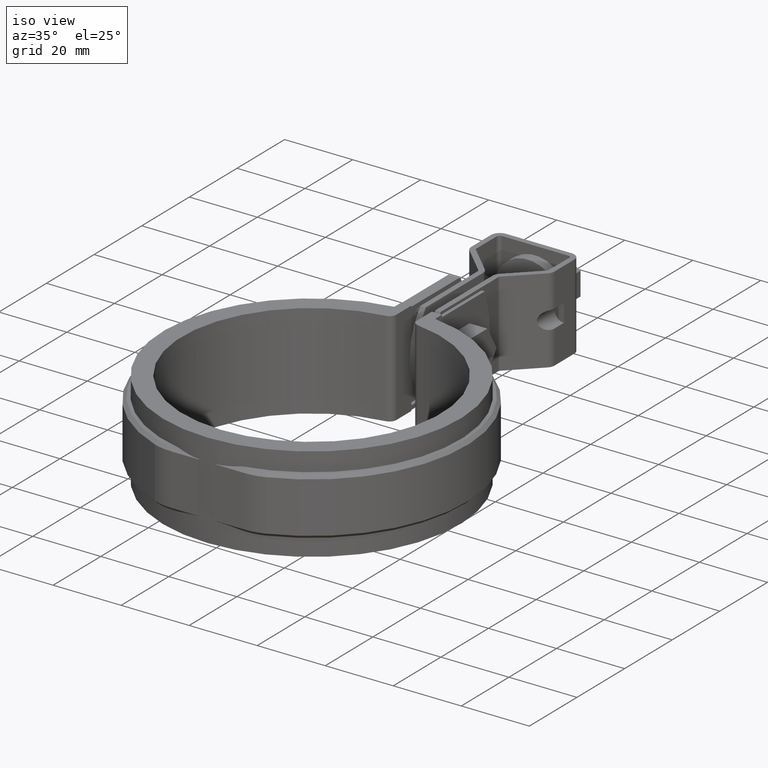
[diagram: clean part render]
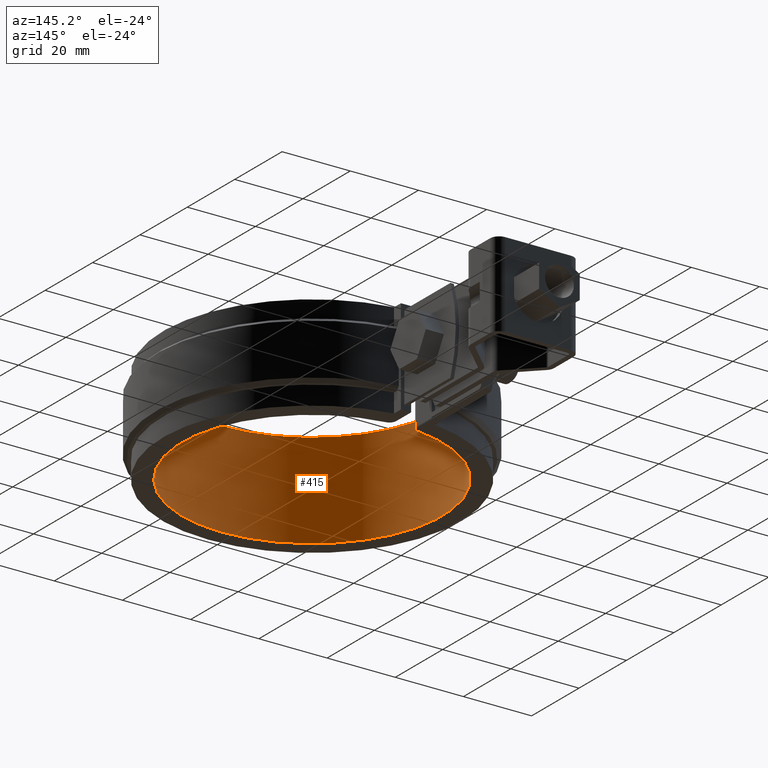
[diagram: tour spotlight — one face highlighted and labeled with its STEP entity id]
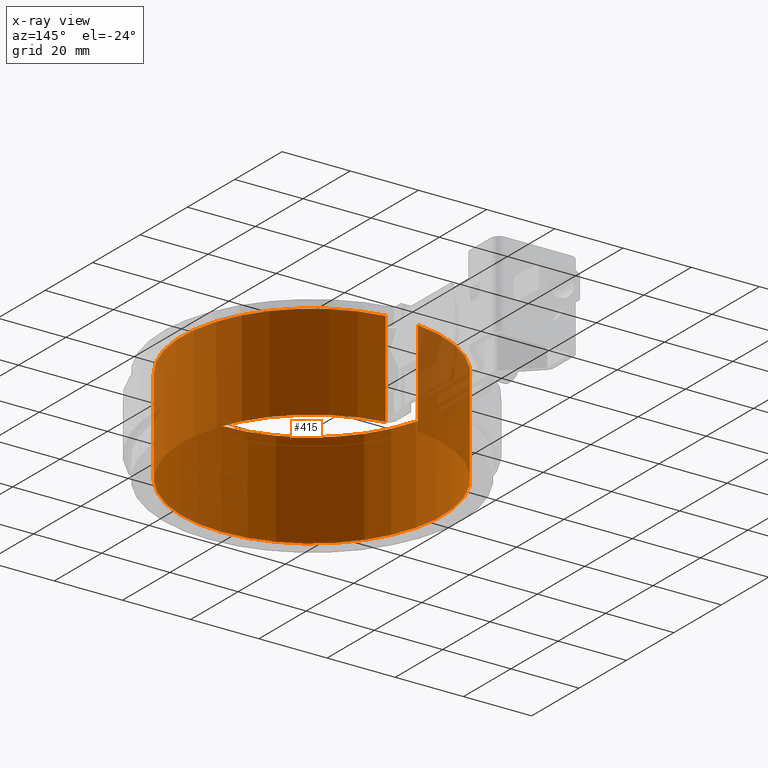
[diagram: x-ray of the same camera — body ghosted, this tour face saturated]
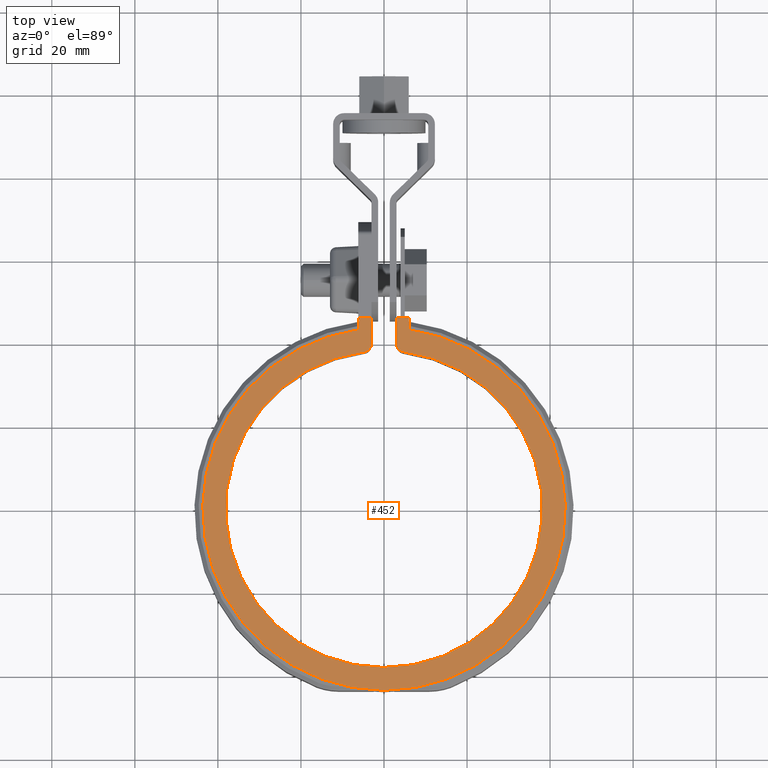
[diagram: tour spotlight — one face highlighted and labeled with its STEP entity id]
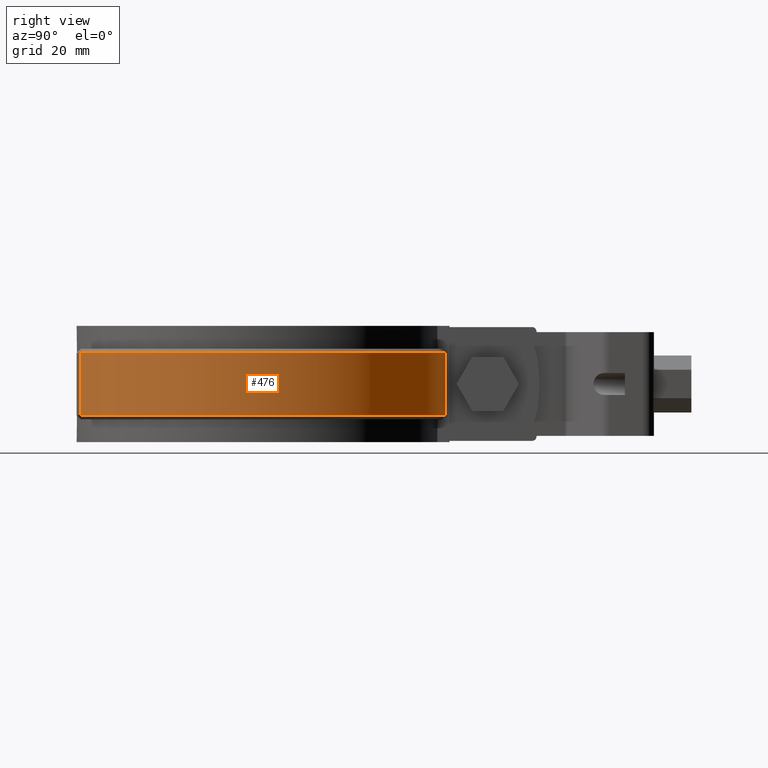
[diagram: tour spotlight — one face highlighted and labeled with its STEP entity id]
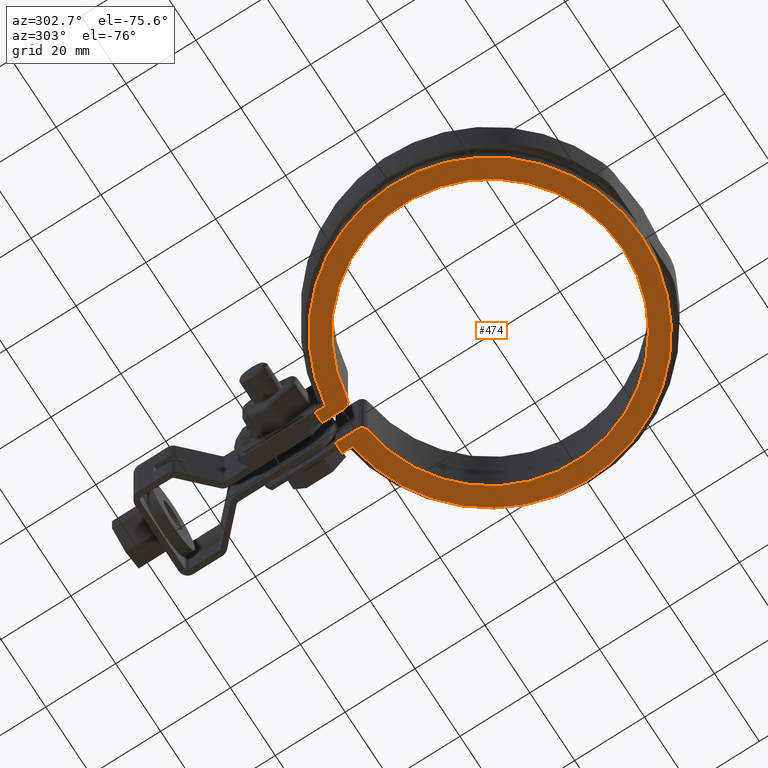
[diagram: tour spotlight — one face highlighted and labeled with its STEP entity id]
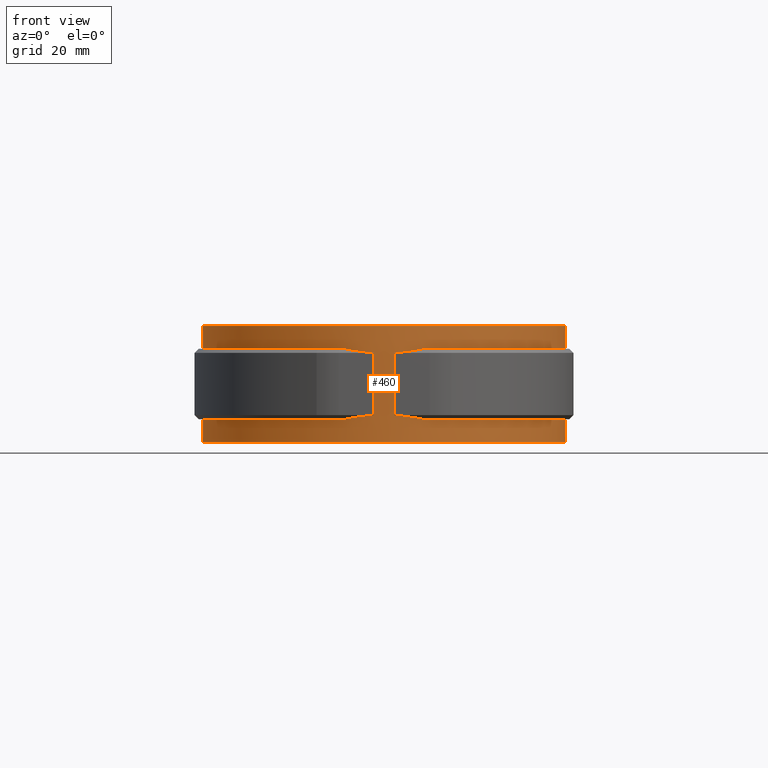
[diagram: tour spotlight — one face highlighted and labeled with its STEP entity id]
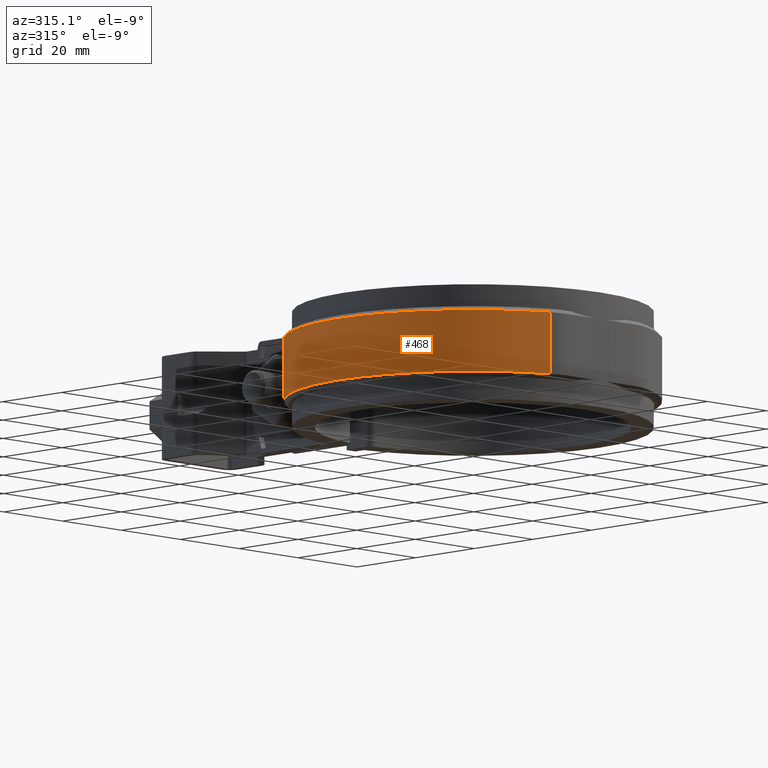
[diagram: tour spotlight — one face highlighted and labeled with its STEP entity id]
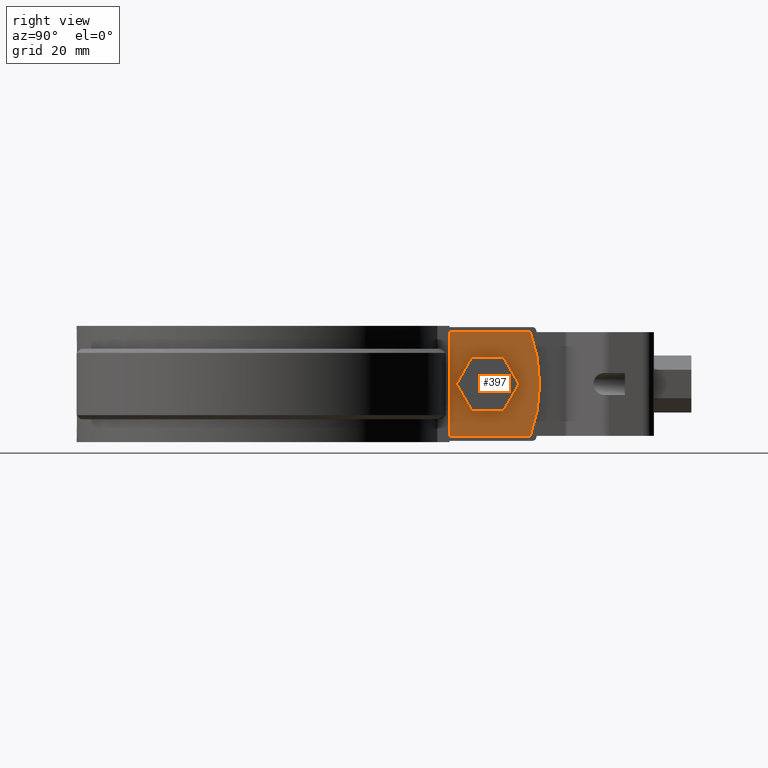
[diagram: tour spotlight — one face highlighted and labeled with its STEP entity id]
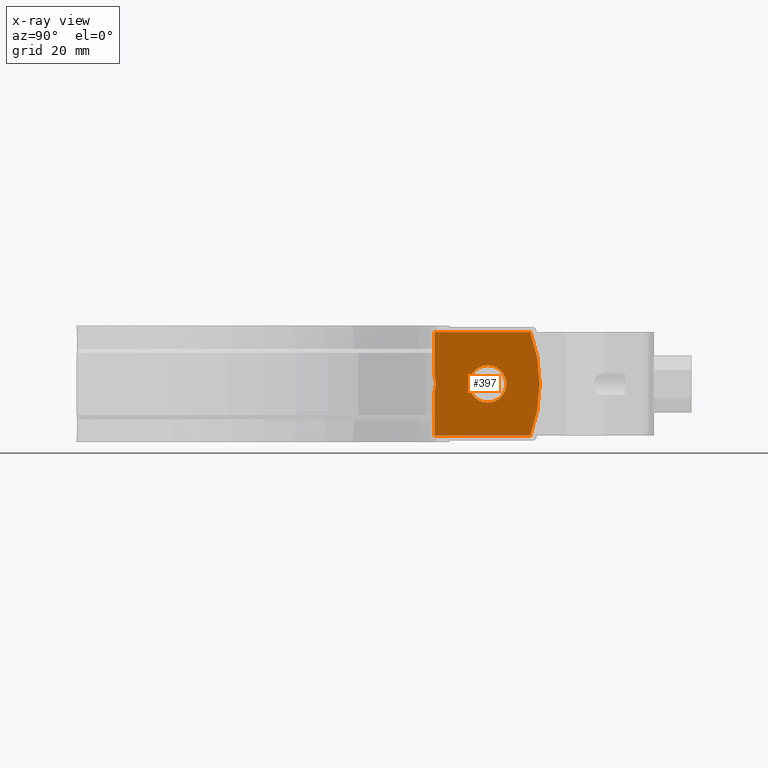
[diagram: x-ray of the same camera — body ghosted, this tour face saturated]
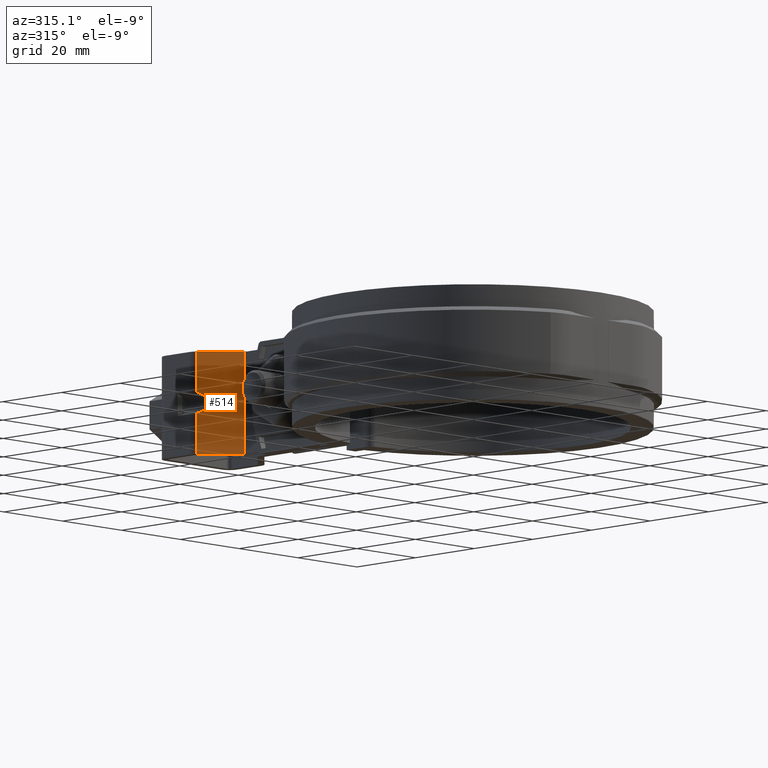
[diagram: tour spotlight — one face highlighted and labeled with its STEP entity id]
A machine part: a face-by-face anatomy tour. The part has 329 B-rep faces; the first image is the clean iso view, then the 8 largest visible faces are spotlighted one at a time (largest first), each with its STEP entity span.

Face 1 — auxiliary view, entity #415. An x-ray twin of the same camera follows (body ghosted, this face saturated) — the face is partly hidden behind the body. In plain terms, the highlighted cylindrical surface (partial cylindrical patch) has radius 38.15 mm, axis along (0, 0, 1).
Definition (entity closure, byte-faithful):
#415 = ADVANCED_FACE( '', ( #806 ), #807, .F. );
#806 = FACE_OUTER_BOUND( '', #1778, .T. );
#807 = CYLINDRICAL_SURFACE( '', #1779, 38.1500000000000 );
#1778 = EDGE_LOOP( '', ( #3680, #3681, #3682, #3683 ) );
#1779 = AXIS2_PLACEMENT_3D( '', #3684, #3685, #3686 );
#3680 = ORIENTED_EDGE( '', *, *, #6304, .T. );
#3681 = ORIENTED_EDGE( '', *, *, #6305, .T. );
#3682 = ORIENTED_EDGE( '', *, *, #6306, .F. );
#3683 = ORIENTED_EDGE( '', *, *, #6307, .T. );
#3684 = CARTESIAN_POINT( '', ( 0.000000000000000, 0.000000000000000, -14.0000000000000 ) );
#3685 = DIRECTION( '', ( 0.000000000000000, 0.000000000000000, 1.00000000000000 ) );
#3686 = DIRECTION( '', ( 1.00000000000000, -6.07153216591882E-017, 0.000000000000000 ) );
#6304 = EDGE_CURVE( '', #7343, #7344, #7345, .T. );
#6305 = EDGE_CURVE( '', #7344, #7346, #7347, .T. );
#6306 = EDGE_CURVE( '', #7348, #7346, #7349, .T. );
#6307 = EDGE_CURVE( '', #7348, #7343, #7350, .T. );
#7343 = VERTEX_POINT( '', #10085 );
#7344 = VERTEX_POINT( '', #10086 );
#7345 = CIRCLE( '', #10087, 38.1500000000000 );
#7346 = VERTEX_POINT( '', #10088 );
#7347 = LINE( '', #10089, #10090 );
#7348 = VERTEX_POINT( '', #10091 );
#7349 = CIRCLE( '', #10092, 38.1500000000000 );
#7350 = LINE( '', #10093, #10094 );
#10085 = CARTESIAN_POINT( '', ( 4.75093399750934, 37.8530200400352, -14.0000000000000 ) );
#10086 = CARTESIAN_POINT( '', ( -4.75093399750936, 37.8530200400352, -14.0000000000000 ) );
#10087 = AXIS2_PLACEMENT_3D( '', #12597, #12598, #12599 );
#10088 = CARTESIAN_POINT( '', ( -4.75093399750936, 37.8530200400352, 14.0000000000000 ) );
#10089 = CARTESIAN_POINT( '', ( -4.75093399750936, 37.8530200400352, -14.0000000000000 ) );
#10090 = VECTOR( '', #12600, 1000.00000000000 );
#10091 = CARTESIAN_POINT( '', ( 4.75093399750934, 37.8530200400352, 14.0000000000000 ) );
#10092 = AXIS2_PLACEMENT_3D( '', #12601, #12602, #12603 );
#10093 = CARTESIAN_POINT( '', ( 4.75093399750934, 37.8530200400352, -14.0000000000000 ) );
#10094 = VECTOR( '', #12604, 1000.00000000000 );
#12597 = CARTESIAN_POINT( '', ( 0.000000000000000, 0.000000000000000, -14.0000000000000 ) );
#12598 = DIRECTION( '', ( 0.000000000000000, 0.000000000000000, -1.00000000000000 ) );
#12599 = DIRECTION( '', ( -1.00000000000000, 0.000000000000000, 0.000000000000000 ) );
#12600 = DIRECTION( '', ( 0.000000000000000, 0.000000000000000, 1.00000000000000 ) );
#12601 = CARTESIAN_POINT( '', ( 0.000000000000000, 0.000000000000000, 14.0000000000000 ) );
#12602 = DIRECTION( '', ( 0.000000000000000, 0.000000000000000, -1.00000000000000 ) );
#12603 = DIRECTION( '', ( -1.00000000000000, 0.000000000000000, 0.000000000000000 ) );
#12604 = DIRECTION( '', ( 0.000000000000000, 0.000000000000000, -1.00000000000000 ) );

Face 2 — top view, entity #452. In plain terms, the highlighted planar face has unit normal (0, 0, -1).
Definition (entity closure, byte-faithful):
#452 = ADVANCED_FACE( '', ( #882 ), #883, .F. );
#882 = FACE_OUTER_BOUND( '', #2070, .T. );
#883 = PLANE( '', #2071 );
#2070 = EDGE_LOOP( '', ( #4125, #4126, #4127, #4128, #4129, #4130, #4131, #4132, #4133, #4134 ) );
#2071 = AXIS2_PLACEMENT_3D( '', #4135, #4136, #4137 );
#4125 = ORIENTED_EDGE( '', *, *, #6391, .F. );
#4126 = ORIENTED_EDGE( '', *, *, #6423, .T. );
#4127 = ORIENTED_EDGE( '', *, *, #6424, .T. );
#4128 = ORIENTED_EDGE( '', *, *, #6306, .T. );
#4129 = ORIENTED_EDGE( '', *, *, #6425, .T. );
#4130 = ORIENTED_EDGE( '', *, *, #6426, .T. );
#4131 = ORIENTED_EDGE( '', *, *, #6427, .F. );
#4132 = ORIENTED_EDGE( '', *, *, #6428, .F. );
#4133 = ORIENTED_EDGE( '', *, *, #6429, .F. );
#4134 = ORIENTED_EDGE( '', *, *, #6375, .F. );
#4135 = CARTESIAN_POINT( '', ( 0.000000000000000, 0.000000000000000, 14.0000000000000 ) );
#4136 = DIRECTION( '', ( 0.000000000000000, 0.000000000000000, -1.00000000000000 ) );
#4137 = DIRECTION( '', ( 0.000000000000000, -1.00000000000000, 0.000000000000000 ) );
#6306 = EDGE_CURVE( '', #7348, #7346, #7349, .T. );
#6375 = EDGE_CURVE( '', #7465, #7449, #7467, .T. );
#6391 = EDGE_CURVE( '', #7489, #7465, #7491, .T. );
#6423 = EDGE_CURVE( '', #7489, #7538, #7539, .F. );
#6424 = EDGE_CURVE( '', #7538, #7348, #7540, .F. );
#6425 = EDGE_CURVE( '', #7346, #7541, #7542, .F. );
#6426 = EDGE_CURVE( '', #7541, #7543, #7544, .F. );
#6427 = EDGE_CURVE( '', #7545, #7543, #7546, .T. );
#6428 = EDGE_CURVE( '', #7547, #7545, #7548, .T. );
#6429 = EDGE_CURVE( '', #7449, #7547, #7549, .T. );
#7346 = VERTEX_POINT( '', #10088 );
#7348 = VERTEX_POINT( '', #10091 );
#7349 = CIRCLE( '', #10092, 38.1500000000000 );
#7449 = VERTEX_POINT( '', #10648 );
#7465 = VERTEX_POINT( '', #10676 );
#7467 = LINE( '', #10679, #10680 );
#7489 = VERTEX_POINT( '', #10749 );
#7491 = LINE( '', #10752, #10753 );
#7538 = VERTEX_POINT( '', #10837 );
#7539 = LINE( '', #10838, #10839 );
#7540 = CIRCLE( '', #10840, 2.00000000000000 );
#7541 = VERTEX_POINT( '', #10841 );
#7542 = CIRCLE( '', #10842, 2.00000000000000 );
#7543 = VERTEX_POINT( '', #10843 );
#7544 = LINE( '', #10844, #10845 );
#7545 = VERTEX_POINT( '', #10846 );
#7546 = LINE( '', #10847, #10848 );
#7547 = VERTEX_POINT( '', #10849 );
#7548 = LINE( '', #10850, #10851 );
#7549 = CIRCLE( '', #10852, 43.6500000000000 );
#10088 = CARTESIAN_POINT( '', ( -4.75093399750936, 37.8530200400352, 14.0000000000000 ) );
#10091 = CARTESIAN_POINT( '', ( 4.75093399750934, 37.8530200400352, 14.0000000000000 ) );
#10092 = AXIS2_PLACEMENT_3D( '', #12601, #12602, #12603 );
#10648 = CARTESIAN_POINT( '', ( 6.00000000000000, 43.2356623633778, 14.0000000000000 ) );
#10676 = CARTESIAN_POINT( '', ( 6.00000000000000, 46.1500000000000, 14.0000000000000 ) );
#10679 = CARTESIAN_POINT( '', ( 6.00000000000000, 46.1500000000000, 14.0000000000000 ) );
#10680 = VECTOR( '', #12671, 1000.00000000000 );
#10749 = CARTESIAN_POINT( '', ( 3.00000000000000, 46.1500000000000, 14.0000000000000 ) );
#10752 = CARTESIAN_POINT( '', ( 4.99999999999997, 46.1500000000000, 14.0000000000000 ) );
#10753 = VECTOR( '', #12684, 1000.00000000000 );
#10837 = CARTESIAN_POINT( '', ( 3.00000000000000, 39.8374509726714, 14.0000000000000 ) );
#10838 = CARTESIAN_POINT( '', ( 3.00000000000000, -1.82145964977564E-016, 14.0000000000000 ) );
#10839 = VECTOR( '', #12735, 1000.00000000000 );
#10840 = AXIS2_PLACEMENT_3D( '', #12736, #12737, #12738 );
#10841 = CARTESIAN_POINT( '', ( -3.00000000000002, 39.8374509726714, 14.0000000000000 ) );
#10842 = AXIS2_PLACEMENT_3D( '', #12739, #12740, #12741 );
#10843 = CARTESIAN_POINT( '', ( -3.00000000000002, 46.1500000000000, 14.0000000000000 ) );
#10844 = CARTESIAN_POINT( '', ( -3.00000000000002, 1.82145964977566E-016, 14.0000000000000 ) );
#10845 = VECTOR( '', #12742, 1000.00000000000 );
#10846 = CARTESIAN_POINT( '', ( -6.00000000000000, 46.1500000000000, 14.0000000000000 ) );
#10847 = CARTESIAN_POINT( '', ( -6.00000000000001, 46.1500000000000, 14.0000000000000 ) );
#10848 = VECTOR( '', #12743, 1000.00000000000 );
#10849 = CARTESIAN_POINT( '', ( -6.00000000000000, 43.2356623633778, 14.0000000000000 ) );
#10850 = CARTESIAN_POINT( '', ( -6.00000000000000, 43.2356623633778, 14.0000000000000 ) );
#10851 = VECTOR( '', #12744, 1000.00000000000 );
#10852 = AXIS2_PLACEMENT_3D( '', #12745, #12746, #12747 );
#12601 = CARTESIAN_POINT( '', ( 0.000000000000000, 0.000000000000000, 14.0000000000000 ) );
#12602 = DIRECTION( '', ( 0.000000000000000, 0.000000000000000, -1.00000000000000 ) );
#12603 = DIRECTION( '', ( -1.00000000000000, 0.000000000000000, 0.000000000000000 ) );
#12671 = DIRECTION( '', ( -6.07153216591882E-017, -1.00000000000000, 0.000000000000000 ) );
#12684 = DIRECTION( '', ( 1.00000000000000, 0.000000000000000, 0.000000000000000 ) );
#12735 = DIRECTION( '', ( 6.07153216591882E-017, 1.00000000000000, 0.000000000000000 ) );
#12736 = CARTESIAN_POINT( '', ( 5.00000000000000, 39.8374509726714, 14.0000000000000 ) );
#12737 = DIRECTION( '', ( 0.000000000000000, 0.000000000000000, -1.00000000000000 ) );
#12738 = DIRECTION( '', ( -1.00000000000000, 0.000000000000000, 0.000000000000000 ) );
#12739 = CARTESIAN_POINT( '', ( -5.00000000000002, 39.8374509726714, 14.0000000000000 ) );
#12740 = DIRECTION( '', ( 0.000000000000000, 0.000000000000000, -1.00000000000000 ) );
#12741 = DIRECTION( '', ( -1.00000000000000, 0.000000000000000, 0.000000000000000 ) );
#12742 = DIRECTION( '', ( -6.07153216591882E-017, -1.00000000000000, 0.000000000000000 ) );
#12743 = DIRECTION( '', ( 1.00000000000000, 0.000000000000000, 0.000000000000000 ) );
#12744 = DIRECTION( '', ( 6.07153216591882E-017, 1.00000000000000, 0.000000000000000 ) );
#12745 = CARTESIAN_POINT( '', ( 0.000000000000000, 0.000000000000000, 14.0000000000000 ) );
#12746 = DIRECTION( '', ( 0.000000000000000, 0.000000000000000, -1.00000000000000 ) );
#12747 = DIRECTION( '', ( -1.00000000000000, 0.000000000000000, 0.000000000000000 ) );

Face 3 — right view, entity #476. In plain terms, the highlighted cylindrical surface (partial cylindrical patch) has radius 45.65 mm, axis along (0, 0, -1).
Definition (entity closure, byte-faithful):
#476 = ADVANCED_FACE( '', ( #930 ), #931, .T. );
#930 = FACE_OUTER_BOUND( '', #2118, .T. );
#931 = CYLINDRICAL_SURFACE( '', #2119, 45.6500000000000 );
#2118 = EDGE_LOOP( '', ( #4329, #4330, #4331, #4332 ) );
#2119 = AXIS2_PLACEMENT_3D( '', #4333, #4334, #4335 );
#4329 = ORIENTED_EDGE( '', *, *, #6369, .T. );
#4330 = ORIENTED_EDGE( '', *, *, #6379, .T. );
#4331 = ORIENTED_EDGE( '', *, *, #6420, .T. );
#4332 = ORIENTED_EDGE( '', *, *, #6469, .T. );
#4333 = CARTESIAN_POINT( '', ( 3.46944695195361E-015, 3.46944695195361E-014, 8.50000000000000 ) );
#4334 = DIRECTION( '', ( 0.000000000000000, 0.000000000000000, -1.00000000000000 ) );
#4335 = DIRECTION( '', ( -0.109529025191676, -0.993983597772398, 0.000000000000000 ) );
#6369 = EDGE_CURVE( '', #7455, #7453, #7456, .T. );
#6379 = EDGE_CURVE( '', #7453, #7471, #7473, .T. );
#6420 = EDGE_CURVE( '', #7471, #7534, #7535, .T. );
#6469 = EDGE_CURVE( '', #7534, #7455, #7606, .T. );
#7453 = VERTEX_POINT( '', #10654 );
#7455 = VERTEX_POINT( '', #10659 );
#7456 = LINE( '', #10660, #10661 );
#7471 = VERTEX_POINT( '', #10685 );
#7473 = CIRCLE( '', #10688, 45.6500000000000 );
#7534 = VERTEX_POINT( '', #10831 );
#7535 = LINE( '', #10832, #10833 );
#7606 = CIRCLE( '', #10938, 45.6500000000000 );
#10654 = CARTESIAN_POINT( '', ( 6.00000000000000, 45.2539777257205, 7.49999999999999 ) );
#10659 = CARTESIAN_POINT( '', ( 6.00000000000000, 45.2539777257205, -7.49999999999999 ) );
#10660 = CARTESIAN_POINT( '', ( 6.00000000000000, 45.2539777257205, 8.50000000000000 ) );
#10661 = VECTOR( '', #12666, 1000.00000000000 );
#10685 = CARTESIAN_POINT( '', ( 16.2200671388275, -42.6712071778140, 7.50000000000000 ) );
#10688 = AXIS2_PLACEMENT_3D( '', #12677, #12678, #12679 );
#10831 = CARTESIAN_POINT( '', ( 16.2200671388275, -42.6712071778140, -7.49999999999999 ) );
#10832 = CARTESIAN_POINT( '', ( 16.2200671388275, -42.6712071778140, 8.50000000000000 ) );
#10833 = VECTOR( '', #12730, 1000.00000000000 );
#10938 = AXIS2_PLACEMENT_3D( '', #12810, #12811, #12812 );
#12666 = DIRECTION( '', ( 0.000000000000000, 0.000000000000000, 1.00000000000000 ) );
#12677 = CARTESIAN_POINT( '', ( 3.46944695195361E-015, 3.46944695195361E-014, 7.49999999999999 ) );
#12678 = DIRECTION( '', ( 0.000000000000000, 0.000000000000000, -1.00000000000000 ) );
#12679 = DIRECTION( '', ( -1.00000000000000, 0.000000000000000, 0.000000000000000 ) );
#12730 = DIRECTION( '', ( 0.000000000000000, 0.000000000000000, -1.00000000000000 ) );
#12810 = CARTESIAN_POINT( '', ( 3.46944695195361E-015, 3.46944695195361E-014, -7.49999999999999 ) );
#12811 = DIRECTION( '', ( 0.000000000000000, 0.000000000000000, 1.00000000000000 ) );
#12812 = DIRECTION( '', ( 1.00000000000000, 0.000000000000000, 0.000000000000000 ) );

Face 4 — auxiliary view, entity #474. In plain terms, the highlighted planar face has unit normal (0, 0, -1).
Definition (entity closure, byte-faithful):
#474 = ADVANCED_FACE( '', ( #926 ), #927, .T. );
#926 = FACE_OUTER_BOUND( '', #2114, .T. );
#927 = PLANE( '', #2115 );
#2114 = EDGE_LOOP( '', ( #4309, #4310, #4311, #4312, #4313, #4314, #4315, #4316, #4317, #4318 ) );
#2115 = AXIS2_PLACEMENT_3D( '', #4319, #4320, #4321 );
#4309 = ORIENTED_EDGE( '', *, *, #6468, .T. );
#4310 = ORIENTED_EDGE( '', *, *, #6444, .F. );
#4311 = ORIENTED_EDGE( '', *, *, #6439, .T. );
#4312 = ORIENTED_EDGE( '', *, *, #6304, .F. );
#4313 = ORIENTED_EDGE( '', *, *, #6441, .T. );
#4314 = ORIENTED_EDGE( '', *, *, #6443, .F. );
#4315 = ORIENTED_EDGE( '', *, *, #6392, .T. );
#4316 = ORIENTED_EDGE( '', *, *, #6373, .T. );
#4317 = ORIENTED_EDGE( '', *, *, #6453, .T. );
#4318 = ORIENTED_EDGE( '', *, *, #6435, .T. );
#4319 = CARTESIAN_POINT( '', ( 0.000000000000000, 0.000000000000000, -14.0000000000000 ) );
#4320 = DIRECTION( '', ( 0.000000000000000, 0.000000000000000, -1.00000000000000 ) );
#4321 = DIRECTION( '', ( 0.000000000000000, -1.00000000000000, 0.000000000000000 ) );
#6304 = EDGE_CURVE( '', #7343, #7344, #7345, .T. );
#6373 = EDGE_CURVE( '', #7463, #7461, #7464, .F. );
#6392 = EDGE_CURVE( '', #7488, #7463, #7492, .F. );
#6435 = EDGE_CURVE( '', #7559, #7557, #7560, .F. );
#6439 = EDGE_CURVE( '', #7565, #7344, #7566, .T. );
#6441 = EDGE_CURVE( '', #7343, #7568, #7569, .T. );
#6443 = EDGE_CURVE( '', #7488, #7568, #7571, .T. );
#6444 = EDGE_CURVE( '', #7565, #7572, #7573, .T. );
#6453 = EDGE_CURVE( '', #7461, #7559, #7587, .T. );
#6468 = EDGE_CURVE( '', #7557, #7572, #7605, .F. );
#7343 = VERTEX_POINT( '', #10085 );
#7344 = VERTEX_POINT( '', #10086 );
#7345 = CIRCLE( '', #10087, 38.1500000000000 );
#7461 = VERTEX_POINT( '', #10670 );
#7463 = VERTEX_POINT( '', #10673 );
#7464 = LINE( '', #10674, #10675 );
#7488 = VERTEX_POINT( '', #10748 );
#7492 = LINE( '', #10754, #10755 );
#7557 = VERTEX_POINT( '', #10866 );
#7559 = VERTEX_POINT( '', #10869 );
#7560 = LINE( '', #10870, #10871 );
#7565 = VERTEX_POINT( '', #10879 );
#7566 = CIRCLE( '', #10880, 2.00000000000000 );
#7568 = VERTEX_POINT( '', #10883 );
#7569 = CIRCLE( '', #10884, 2.00000000000000 );
#7571 = LINE( '', #10887, #10888 );
#7572 = VERTEX_POINT( '', #10889 );
#7573 = LINE( '', #10890, #10891 );
#7587 = CIRCLE( '', #10907, 43.6500000000000 );
#7605 = LINE( '', #10936, #10937 );
#10085 = CARTESIAN_POINT( '', ( 4.75093399750934, 37.8530200400352, -14.0000000000000 ) );
#10086 = CARTESIAN_POINT( '', ( -4.75093399750936, 37.8530200400352, -14.0000000000000 ) );
#10087 = AXIS2_PLACEMENT_3D( '', #12597, #12598, #12599 );
#10670 = CARTESIAN_POINT( '', ( 6.00000000000000, 43.2356623633778, -14.0000000000000 ) );
#10673 = CARTESIAN_POINT( '', ( 6.00000000000000, 46.1500000000000, -14.0000000000000 ) );
#10674 = CARTESIAN_POINT( '', ( 6.00000000000000, -3.64291929955129E-016, -14.0000000000000 ) );
#10675 = VECTOR( '', #12669, 1000.00000000000 );
#10748 = CARTESIAN_POINT( '', ( 3.00000000000000, 46.1500000000000, -14.0000000000000 ) );
#10754 = CARTESIAN_POINT( '', ( 0.000000000000000, 46.1500000000000, -14.0000000000000 ) );
#10755 = VECTOR( '', #12685, 1000.00000000000 );
#10866 = CARTESIAN_POINT( '', ( -6.00000000000000, 46.1500000000000, -14.0000000000000 ) );
#10869 = CARTESIAN_POINT( '', ( -6.00000000000000, 43.2356623633778, -14.0000000000000 ) );
#10870 = CARTESIAN_POINT( '', ( -6.00000000000000, 3.64291929955129E-016, -14.0000000000000 ) );
#10871 = VECTOR( '', #12752, 1000.00000000000 );
#10879 = CARTESIAN_POINT( '', ( -3.00000000000002, 39.8374509726714, -14.0000000000000 ) );
#10880 = AXIS2_PLACEMENT_3D( '', #12756, #12757, #12758 );
#10883 = CARTESIAN_POINT( '', ( 3.00000000000000, 39.8374509726714, -14.0000000000000 ) );
#10884 = AXIS2_PLACEMENT_3D( '', #12760, #12761, #12762 );
#10887 = CARTESIAN_POINT( '', ( 3.00000000000000, 46.1500000000000, -14.0000000000000 ) );
#10888 = VECTOR( '', #12764, 1000.00000000000 );
#10889 = CARTESIAN_POINT( '', ( -3.00000000000002, 46.1500000000000, -14.0000000000000 ) );
#10890 = CARTESIAN_POINT( '', ( -3.00000000000002, 38.0318616425754, -14.0000000000000 ) );
#10891 = VECTOR( '', #12765, 1000.00000000000 );
#10907 = AXIS2_PLACEMENT_3D( '', #12786, #12787, #12788 );
#10936 = CARTESIAN_POINT( '', ( 0.000000000000000, 46.1500000000000, -14.0000000000000 ) );
#10937 = VECTOR( '', #12809, 1000.00000000000 );
#12597 = CARTESIAN_POINT( '', ( 0.000000000000000, 0.000000000000000, -14.0000000000000 ) );
#12598 = DIRECTION( '', ( 0.000000000000000, 0.000000000000000, -1.00000000000000 ) );
#12599 = DIRECTION( '', ( -1.00000000000000, 0.000000000000000, 0.000000000000000 ) );
#12669 = DIRECTION( '', ( 6.07153216591882E-017, 1.00000000000000, 0.000000000000000 ) );
#12685 = DIRECTION( '', ( -1.00000000000000, 0.000000000000000, 0.000000000000000 ) );
#12752 = DIRECTION( '', ( -6.07153216591882E-017, -1.00000000000000, 0.000000000000000 ) );
#12756 = CARTESIAN_POINT( '', ( -5.00000000000002, 39.8374509726714, -14.0000000000000 ) );
#12757 = DIRECTION( '', ( 0.000000000000000, 0.000000000000000, -1.00000000000000 ) );
#12758 = DIRECTION( '', ( -1.00000000000000, 0.000000000000000, 0.000000000000000 ) );
#12760 = CARTESIAN_POINT( '', ( 5.00000000000000, 39.8374509726714, -14.0000000000000 ) );
#12761 = DIRECTION( '', ( 0.000000000000000, 0.000000000000000, -1.00000000000000 ) );
#12762 = DIRECTION( '', ( -1.00000000000000, 0.000000000000000, 0.000000000000000 ) );
#12764 = DIRECTION( '', ( -6.07153216591882E-017, -1.00000000000000, 0.000000000000000 ) );
#12765 = DIRECTION( '', ( 6.07153216591882E-017, 1.00000000000000, 0.000000000000000 ) );
#12786 = CARTESIAN_POINT( '', ( 0.000000000000000, 0.000000000000000, -14.0000000000000 ) );
#12787 = DIRECTION( '', ( 0.000000000000000, 0.000000000000000, -1.00000000000000 ) );
#12788 = DIRECTION( '', ( -1.00000000000000, 0.000000000000000, 0.000000000000000 ) );
#12809 = DIRECTION( '', ( -1.00000000000000, 0.000000000000000, 0.000000000000000 ) );

Face 5 — front view, entity #460. In plain terms, the highlighted cylindrical surface (partial cylindrical patch) has radius 43.65 mm, axis along (0, 0, 1).
Definition (entity closure, byte-faithful):
#460 = ADVANCED_FACE( '', ( #898 ), #899, .T. );
#898 = FACE_OUTER_BOUND( '', #2086, .T. );
#899 = CYLINDRICAL_SURFACE( '', #2087, 43.6500000000000 );
#2086 = EDGE_LOOP( '', ( #4193, #4194, #4195, #4196, #4197, #4198, #4199, #4200, #4201, #4202, #4203, #4204, #4205, #4206, #4207, #4208 ) );
#2087 = AXIS2_PLACEMENT_3D( '', #4209, #4210, #4211 );
#4193 = ORIENTED_EDGE( '', *, *, #6359, .F. );
#4194 = ORIENTED_EDGE( '', *, *, #6446, .T. );
#4195 = ORIENTED_EDGE( '', *, *, #6447, .T. );
#4196 = ORIENTED_EDGE( '', *, *, #6366, .T. );
#4197 = ORIENTED_EDGE( '', *, *, #6429, .T. );
#4198 = ORIENTED_EDGE( '', *, *, #6433, .F. );
#4199 = ORIENTED_EDGE( '', *, *, #6448, .T. );
#4200 = ORIENTED_EDGE( '', *, *, #6449, .T. );
#4201 = ORIENTED_EDGE( '', *, *, #6450, .F. );
#4202 = ORIENTED_EDGE( '', *, *, #6451, .T. );
#4203 = ORIENTED_EDGE( '', *, *, #6452, .F. );
#4204 = ORIENTED_EDGE( '', *, *, #6436, .F. );
#4205 = ORIENTED_EDGE( '', *, *, #6453, .F. );
#4206 = ORIENTED_EDGE( '', *, *, #6372, .T. );
#4207 = ORIENTED_EDGE( '', *, *, #6402, .F. );
#4208 = ORIENTED_EDGE( '', *, *, #6418, .T. );
#4209 = CARTESIAN_POINT( '', ( 0.000000000000000, 0.000000000000000, -14.0000000000000 ) );
#4210 = DIRECTION( '', ( 0.000000000000000, 0.000000000000000, 1.00000000000000 ) );
#4211 = DIRECTION( '', ( -1.00000000000000, 6.07153216591882E-017, 0.000000000000000 ) );
#6359 = EDGE_CURVE( '', #7434, #7436, #7437, .T. );
#6366 = EDGE_CURVE( '', #7448, #7449, #7450, .F. );
#6372 = EDGE_CURVE( '', #7461, #7459, #7462, .F. );
#6402 = EDGE_CURVE( '', #7507, #7459, #7509, .T. );
#6418 = EDGE_CURVE( '', #7507, #7436, #7532, .F. );
#6429 = EDGE_CURVE( '', #7449, #7547, #7549, .T. );
#6433 = EDGE_CURVE( '', #7554, #7547, #7556, .F. );
#6436 = EDGE_CURVE( '', #7559, #7561, #7562, .F. );
#6446 = EDGE_CURVE( '', #7434, #7575, #7576, .T. );
#6447 = EDGE_CURVE( '', #7575, #7448, #7577, .T. );
#6448 = EDGE_CURVE( '', #7554, #7578, #7579, .T. );
#6449 = EDGE_CURVE( '', #7578, #7580, #7581, .T. );
#6450 = EDGE_CURVE( '', #7582, #7580, #7583, .F. );
#6451 = EDGE_CURVE( '', #7582, #7584, #7585, .F. );
#6452 = EDGE_CURVE( '', #7561, #7584, #7586, .T. );
#6453 = EDGE_CURVE( '', #7461, #7559, #7587, .T. );
#7434 = VERTEX_POINT( '', #10627 );
#7436 = VERTEX_POINT( '', #10630 );
#7437 = LINE( '', #10631, #10632 );
#7448 = VERTEX_POINT( '', #10647 );
#7449 = VERTEX_POINT( '', #10648 );
#7450 = LINE( '', #10649, #10650 );
#7459 = VERTEX_POINT( '', #10667 );
#7461 = VERTEX_POINT( '', #10670 );
#7462 = LINE( '', #10671, #10672 );
#7507 = VERTEX_POINT( '', #10779 );
#7509 = CIRCLE( '', #10782, 43.6500000000000 );
#7532 = ELLIPSE( '', #10828, 61.7304219975854, 43.6500000000000 );
#7547 = VERTEX_POINT( '', #10849 );
#7549 = CIRCLE( '', #10852, 43.6500000000000 );
#7554 = VERTEX_POINT( '', #10861 );
#7556 = LINE( '', #10864, #10865 );
#7559 = VERTEX_POINT( '', #10869 );
#7561 = VERTEX_POINT( '', #10872 );
#7562 = LINE( '', #10873, #10874 );
#7575 = VERTEX_POINT( '', #10894 );
#7576 = ELLIPSE( '', #10895, 61.7304219975853, 43.6500000000000 );
#7577 = CIRCLE( '', #10896, 43.6500000000000 );
#7578 = VERTEX_POINT( '', #10897 );
#7579 = CIRCLE( '', #10898, 43.6500000000000 );
#7580 = VERTEX_POINT( '', #10899 );
#7581 = ELLIPSE( '', #10900, 61.7304219975853, 43.6500000000000 );
#7582 = VERTEX_POINT( '', #10901 );
#7583 = LINE( '', #10902, #10903 );
#7584 = VERTEX_POINT( '', #10904 );
#7585 = ELLIPSE( '', #10905, 61.7304219975854, 43.6500000000000 );
#7586 = CIRCLE( '', #10906, 43.6500000000000 );
#7587 = CIRCLE( '', #10907, 43.6500000000000 );
#10627 = CARTESIAN_POINT( '', ( 2.50000000000001, -43.5783489820346, 7.57165101796526 ) );
#10630 = CARTESIAN_POINT( '', ( 2.50000000000001, -43.5783489820346, -7.57165101796527 ) );
#10631 = CARTESIAN_POINT( '', ( 2.50000000000001, -43.5783489820346, -14.0000000000000 ) );
#10632 = VECTOR( '', #12653, 1000.00000000000 );
#10647 = CARTESIAN_POINT( '', ( 6.00000000000000, 43.2356623633778, 8.50000000000000 ) );
#10648 = CARTESIAN_POINT( '', ( 6.00000000000000, 43.2356623633778, 14.0000000000000 ) );
#10649 = CARTESIAN_POINT( '', ( 6.00000000000000, 43.2356623633778, -14.0000000000000 ) );
#10650 = VECTOR( '', #12664, 1000.00000000000 );
#10667 = CARTESIAN_POINT( '', ( 6.00000000000000, 43.2356623633778, -8.50000000000000 ) );
#10670 = CARTESIAN_POINT( '', ( 6.00000000000000, 43.2356623633778, -14.0000000000000 ) );
#10671 = CARTESIAN_POINT( '', ( 6.00000000000000, 43.2356623633778, -14.0000000000000 ) );
#10672 = VECTOR( '', #12668, 1000.00000000000 );
#10779 = CARTESIAN_POINT( '', ( 9.28977932999533, -42.6499999999999, -8.50000000000000 ) );
#10782 = AXIS2_PLACEMENT_3D( '', #12698, #12699, #12700 );
#10828 = AXIS2_PLACEMENT_3D( '', #12726, #12727, #12728 );
#10849 = CARTESIAN_POINT( '', ( -6.00000000000000, 43.2356623633778, 14.0000000000000 ) );
#10852 = AXIS2_PLACEMENT_3D( '', #12745, #12746, #12747 );
#10861 = CARTESIAN_POINT( '', ( -6.00000000000000, 43.2356623633778, 8.50000000000000 ) );
#10864 = CARTESIAN_POINT( '', ( -6.00000000000000, 43.2356623633778, -14.0000000000000 ) );
#10865 = VECTOR( '', #12750, 1000.00000000000 );
#10869 = CARTESIAN_POINT( '', ( -6.00000000000000, 43.2356623633778, -14.0000000000000 ) );
#10872 = CARTESIAN_POINT( '', ( -6.00000000000000, 43.2356623633778, -8.50000000000000 ) );
#10873 = CARTESIAN_POINT( '', ( -6.00000000000000, 43.2356623633778, -14.0000000000000 ) );
#10874 = VECTOR( '', #12753, 1000.00000000000 );
#10894 = CARTESIAN_POINT( '', ( 9.28977932999537, -42.6499999999999, 8.50000000000000 ) );
#10895 = AXIS2_PLACEMENT_3D( '', #12767, #12768, #12769 );
#10896 = AXIS2_PLACEMENT_3D( '', #12770, #12771, #12772 );
#10897 = CARTESIAN_POINT( '', ( -9.28977932999530, -42.6499999999999, 8.50000000000000 ) );
#10898 = AXIS2_PLACEMENT_3D( '', #12773, #12774, #12775 );
#10899 = CARTESIAN_POINT( '', ( -2.50000000000001, -43.5783489820346, 7.57165101796527 ) );
#10900 = AXIS2_PLACEMENT_3D( '', #12776, #12777, #12778 );
#10901 = CARTESIAN_POINT( '', ( -2.50000000000001, -43.5783489820346, -7.57165101796525 ) );
#10902 = CARTESIAN_POINT( '', ( -2.50000000000001, -43.5783489820346, -14.0000000000000 ) );
#10903 = VECTOR( '', #12779, 1000.00000000000 );
#10904 = CARTESIAN_POINT( '', ( -9.28977932999539, -42.6499999999999, -8.50000000000000 ) );
#10905 = AXIS2_PLACEMENT_3D( '', #12780, #12781, #12782 );
#10906 = AXIS2_PLACEMENT_3D( '', #12783, #12784, #12785 );
#10907 = AXIS2_PLACEMENT_3D( '', #12786, #12787, #12788 );
#12653 = DIRECTION( '', ( 0.000000000000000, 0.000000000000000, -1.00000000000000 ) );
#12664 = DIRECTION( '', ( 0.000000000000000, 0.000000000000000, -1.00000000000000 ) );
#12668 = DIRECTION( '', ( 0.000000000000000, 0.000000000000000, -1.00000000000000 ) );
#12698 = CARTESIAN_POINT( '', ( 0.000000000000000, 0.000000000000000, -8.50000000000000 ) );
#12699 = DIRECTION( '', ( 0.000000000000000, 0.000000000000000, 1.00000000000000 ) );
#12700 = DIRECTION( '', ( 1.00000000000000, 0.000000000000000, 0.000000000000000 ) );
#12726 = CARTESIAN_POINT( '', ( 0.000000000000000, 0.000000000000000, -51.1499999999996 ) );
#12727 = DIRECTION( '', ( -9.81307786677356E-018, 0.707106781186545, 0.707106781186550 ) );
#12728 = DIRECTION( '', ( -9.81307786677363E-018, 0.707106781186550, -0.707106781186545 ) );
#12745 = CARTESIAN_POINT( '', ( 0.000000000000000, 0.000000000000000, 14.0000000000000 ) );
#12746 = DIRECTION( '', ( 0.000000000000000, 0.000000000000000, -1.00000000000000 ) );
#12747 = DIRECTION( '', ( -1.00000000000000, 0.000000000000000, 0.000000000000000 ) );
#12750 = DIRECTION( '', ( 0.000000000000000, 0.000000000000000, -1.00000000000000 ) );
#12753 = DIRECTION( '', ( 0.000000000000000, 0.000000000000000, -1.00000000000000 ) );
#12767 = CARTESIAN_POINT( '', ( 0.000000000000000, 0.000000000000000, 51.1499999999995 ) );
#12768 = DIRECTION( '', ( 9.81307786677355E-018, -0.707106781186544, 0.707106781186551 ) );
#12769 = DIRECTION( '', ( 9.81307786677365E-018, -0.707106781186551, -0.707106781186544 ) );
#12770 = CARTESIAN_POINT( '', ( 0.000000000000000, 0.000000000000000, 8.50000000000000 ) );
#12771 = DIRECTION( '', ( 0.000000000000000, 0.000000000000000, 1.00000000000000 ) );
#12772 = DIRECTION( '', ( 1.00000000000000, 0.000000000000000, 0.000000000000000 ) );
#12773 = CARTESIAN_POINT( '', ( 0.000000000000000, 0.000000000000000, 8.50000000000000 ) );
#12774 = DIRECTION( '', ( 0.000000000000000, 0.000000000000000, 1.00000000000000 ) );
#12775 = DIRECTION( '', ( 1.00000000000000, 0.000000000000000, 0.000000000000000 ) );
#12776 = CARTESIAN_POINT( '', ( 0.000000000000000, 0.000000000000000, 51.1499999999995 ) );
#12777 = DIRECTION( '', ( -9.81307786677355E-018, -0.707106781186544, 0.707106781186551 ) );
#12778 = DIRECTION( '', ( -9.81307786677365E-018, -0.707106781186551, -0.707106781186544 ) );
#12779 = DIRECTION( '', ( 0.000000000000000, 0.000000000000000, -1.00000000000000 ) );
#12780 = CARTESIAN_POINT( '', ( 0.000000000000000, 0.000000000000000, -51.1499999999996 ) );
#12781 = DIRECTION( '', ( 9.81307786677356E-018, 0.707106781186545, 0.707106781186550 ) );
#12782 = DIRECTION( '', ( 9.81307786677363E-018, 0.707106781186550, -0.707106781186545 ) );
#12783 = CARTESIAN_POINT( '', ( 0.000000000000000, 0.000000000000000, -8.50000000000000 ) );
#12784 = DIRECTION( '', ( 0.000000000000000, 0.000000000000000, 1.00000000000000 ) );
#12785 = DIRECTION( '', ( 1.00000000000000, 0.000000000000000, 0.000000000000000 ) );
#12786 = CARTESIAN_POINT( '', ( 0.000000000000000, 0.000000000000000, -14.0000000000000 ) );
#12787 = DIRECTION( '', ( 0.000000000000000, 0.000000000000000, -1.00000000000000 ) );
#12788 = DIRECTION( '', ( -1.00000000000000, 0.000000000000000, 0.000000000000000 ) );

Face 6 — auxiliary view, entity #468. In plain terms, the highlighted cylindrical surface (partial cylindrical patch) has radius 45.65 mm, axis along (0, 0, -1).
Definition (entity closure, byte-faithful):
#468 = ADVANCED_FACE( '', ( #914 ), #915, .T. );
#914 = FACE_OUTER_BOUND( '', #2102, .T. );
#915 = CYLINDRICAL_SURFACE( '', #2103, 45.6500000000000 );
#2102 = EDGE_LOOP( '', ( #4265, #4266, #4267, #4268 ) );
#2103 = AXIS2_PLACEMENT_3D( '', #4269, #4270, #4271 );
#4265 = ORIENTED_EDGE( '', *, *, #6430, .T. );
#4266 = ORIENTED_EDGE( '', *, *, #6407, .T. );
#4267 = ORIENTED_EDGE( '', *, *, #6362, .F. );
#4268 = ORIENTED_EDGE( '', *, *, #6461, .T. );
#4269 = CARTESIAN_POINT( '', ( -3.46944695195361E-015, 3.46944695195361E-014, 8.50000000000000 ) );
#4270 = DIRECTION( '', ( 0.000000000000000, 0.000000000000000, -1.00000000000000 ) );
#4271 = DIRECTION( '', ( 0.109529025191676, -0.993983597772398, 0.000000000000000 ) );
#6362 = EDGE_CURVE( '', #7440, #7441, #7442, .T. );
#6407 = EDGE_CURVE( '', #7512, #7441, #7517, .T. );
#6430 = EDGE_CURVE( '', #7550, #7512, #7551, .F. );
#6461 = EDGE_CURVE( '', #7440, #7550, #7596, .T. );
#7440 = VERTEX_POINT( '', #10637 );
#7441 = VERTEX_POINT( '', #10638 );
#7442 = LINE( '', #10639, #10640 );
#7512 = VERTEX_POINT( '', #10785 );
#7517 = CIRCLE( '', #10794, 45.6500000000000 );
#7550 = VERTEX_POINT( '', #10853 );
#7551 = LINE( '', #10854, #10855 );
#7596 = CIRCLE( '', #10922, 45.6500000000000 );
#10637 = CARTESIAN_POINT( '', ( -16.2200671388275, -42.6712071778140, 7.50000000000000 ) );
#10638 = CARTESIAN_POINT( '', ( -16.2200671388275, -42.6712071778140, -7.50000000000000 ) );
#10639 = CARTESIAN_POINT( '', ( -16.2200671388275, -42.6712071778140, 8.50000000000000 ) );
#10640 = VECTOR( '', #12656, 1000.00000000000 );
#10785 = CARTESIAN_POINT( '', ( -6.00000000000000, 45.2539777257205, -7.49999999999999 ) );
#10794 = AXIS2_PLACEMENT_3D( '', #12708, #12709, #12710 );
#10853 = CARTESIAN_POINT( '', ( -6.00000000000000, 45.2539777257205, 7.50000000000000 ) );
#10854 = CARTESIAN_POINT( '', ( -6.00000000000000, 45.2539777257205, 8.50000000000000 ) );
#10855 = VECTOR( '', #12748, 1000.00000000000 );
#10922 = AXIS2_PLACEMENT_3D( '', #12798, #12799, #12800 );
#12656 = DIRECTION( '', ( 0.000000000000000, 0.000000000000000, -1.00000000000000 ) );
#12708 = CARTESIAN_POINT( '', ( -3.46944695195361E-015, 3.46944695195361E-014, -7.49999999999999 ) );
#12709 = DIRECTION( '', ( 0.000000000000000, 0.000000000000000, 1.00000000000000 ) );
#12710 = DIRECTION( '', ( 1.00000000000000, 0.000000000000000, 0.000000000000000 ) );
#12748 = DIRECTION( '', ( 0.000000000000000, 0.000000000000000, 1.00000000000000 ) );
#12798 = CARTESIAN_POINT( '', ( -3.46944695195361E-015, 3.46944695195361E-014, 7.50000000000000 ) );
#12799 = DIRECTION( '', ( 0.000000000000000, 0.000000000000000, -1.00000000000000 ) );
#12800 = DIRECTION( '', ( -1.00000000000000, 0.000000000000000, 0.000000000000000 ) );

Face 7 — right view, entity #397. An x-ray twin of the same camera follows (body ghosted, this face saturated) — the face is partly hidden behind the body. In plain terms, the highlighted planar face has unit normal (1, 0, 0).
Definition (entity closure, byte-faithful):
#397 = ADVANCED_FACE( '', ( #768, #769 ), #770, .T. );
#768 = FACE_OUTER_BOUND( '', #1737, .T. );
#769 = FACE_BOUND( '', #1738, .T. );
#770 = PLANE( '', #1739 );
#1737 = EDGE_LOOP( '', ( #3345, #3346, #3347, #3348, #3349, #3350 ) );
#1738 = EDGE_LOOP( '', ( #3351 ) );
#1739 = AXIS2_PLACEMENT_3D( '', #3352, #3353, #3354 );
#3345 = ORIENTED_EDGE( '', *, *, #6210, .F. );
#3346 = ORIENTED_EDGE( '', *, *, #6189, .F. );
#3347 = ORIENTED_EDGE( '', *, *, #6251, .T. );
#3348 = ORIENTED_EDGE( '', *, *, #6241, .T. );
#3349 = ORIENTED_EDGE( '', *, *, #6138, .F. );
#3350 = ORIENTED_EDGE( '', *, *, #6252, .F. );
#3351 = ORIENTED_EDGE( '', *, *, #6242, .T. );
#3352 = CARTESIAN_POINT( '', ( 5.00000000000000, 42.5784276365391, -12.5000000000000 ) );
#3353 = DIRECTION( '', ( 1.00000000000000, 2.34067589742701E-049, 3.79805155346016E-033 ) );
#3354 = DIRECTION( '', ( 0.000000000000000, 1.00000000000000, -6.16283340149655E-017 ) );
#6138 = EDGE_CURVE( '', #7056, #7058, #7059, .F. );
#6189 = EDGE_CURVE( '', #7151, #7149, #7153, .T. );
#6210 = EDGE_CURVE( '', #7149, #7185, #7186, .T. );
#6241 = EDGE_CURVE( '', #7233, #7058, #7235, .T. );
#6242 = EDGE_CURVE( '', #7236, #7236, #7237, .F. );
#6251 = EDGE_CURVE( '', #7151, #7233, #7248, .T. );
#6252 = EDGE_CURVE( '', #7185, #7056, #7249, .T. );
#7056 = VERTEX_POINT( '', #8575 );
#7058 = VERTEX_POINT( '', #8577 );
#7059 = LINE( '', #8578, #8579 );
#7149 = VERTEX_POINT( '', #9122 );
#7151 = VERTEX_POINT( '', #9137 );
#7153 = LINE( '', #9139, #9140 );
#7185 = VERTEX_POINT( '', #9373 );
#7186 = B_SPLINE_CURVE_WITH_KNOTS( '', 3, ( #9374, #9375, #9376, #9377, #9378, #9379, #9380, #9381 ), .UNSPECIFIED., .F., .F., ( 4, 2, 2, 4 ), ( 0.000000000000000, 0.00180710444006216, 0.00271065666009324, 0.00361420888012433 ), .UNSPECIFIED. );
#7233 = VERTEX_POINT( '', #9751 );
#7235 = CIRCLE( '', #9754, 36.0000000000000 );
#7236 = VERTEX_POINT( '', #9755 );
#7237 = CIRCLE( '', #9756, 4.50000000000000 );
#7248 = LINE( '', #9790, #9791 );
#7249 = LINE( '', #9792, #9793 );
#8575 = CARTESIAN_POINT( '', ( 5.00000000000000, 42.5784276365391, 12.5000000000000 ) );
#8577 = CARTESIAN_POINT( '', ( 5.00000000000000, 65.6052873945264, 12.5000000000000 ) );
#8578 = CARTESIAN_POINT( '', ( 5.00000000000000, 42.5784276365391, 12.5000000000000 ) );
#8579 = VECTOR( '', #12409, 1000.00000000000 );
#9122 = CARTESIAN_POINT( '', ( 5.00000000000000, 42.5784276365391, -1.78972355179728 ) );
#9137 = CARTESIAN_POINT( '', ( 5.00000000000000, 42.5784276365391, -12.5000000000000 ) );
#9139 = CARTESIAN_POINT( '', ( 5.00000000000000, 42.5784276365391, -12.5000000000000 ) );
#9140 = VECTOR( '', #12467, 1000.00000000000 );
#9373 = CARTESIAN_POINT( '', ( 5.00000000000000, 42.5784276365391, 1.78972355179530 ) );
#9374 = CARTESIAN_POINT( '', ( 5.00000000000000, 42.5784276365391, -1.78972355179728 ) );
#9375 = CARTESIAN_POINT( '', ( 5.00000000000000, 42.7623800124426, -1.20728077000660 ) );
#9376 = CARTESIAN_POINT( '', ( 5.00000000000000, 42.8570859072648, -0.612302021116595 ) );
#9377 = CARTESIAN_POINT( '', ( 5.00000000000000, 42.8577379650877, 0.300028743025243 ) );
#9378 = CARTESIAN_POINT( '', ( 4.99999999999999, 42.8334702706240, 0.605077647066505 ) );
#9379 = CARTESIAN_POINT( '', ( 4.99999999999999, 42.7398033305823, 1.20320374920510 ) );
#9380 = CARTESIAN_POINT( '', ( 5.00000000000000, 42.6704348396632, 1.49840395850849 ) );
#9381 = CARTESIAN_POINT( '', ( 5.00000000000000, 42.5784276365391, 1.78972355179531 ) );
#9751 = CARTESIAN_POINT( '', ( 5.00000000000000, 65.6052873945264, -12.5000000000000 ) );
#9754 = AXIS2_PLACEMENT_3D( '', #12516, #12517, #12518 );
#9755 = CARTESIAN_POINT( '', ( 5.00000000000000, 55.3451037457368, -4.50000000000000 ) );
#9756 = AXIS2_PLACEMENT_3D( '', #12519, #12520, #12521 );
#9790 = CARTESIAN_POINT( '', ( 5.00000000000000, 42.5784276365391, -12.5000000000000 ) );
#9791 = VECTOR( '', #12530, 1000.00000000000 );
#9792 = CARTESIAN_POINT( '', ( 5.00000000000000, 42.5784276365391, -12.5000000000000 ) );
#9793 = VECTOR( '', #12531, 1000.00000000000 );
#12409 = DIRECTION( '', ( 2.34067589742701E-049, -1.00000000000000, 0.000000000000000 ) );
#12467 = DIRECTION( '', ( 0.000000000000000, 0.000000000000000, 1.00000000000000 ) );
#12516 = CARTESIAN_POINT( '', ( 5.00000000000000, 31.8451037457368, 2.77555756156289E-014 ) );
#12517 = DIRECTION( '', ( 1.00000000000000, 2.34067589742701E-049, 3.79805155346016E-033 ) );
#12518 = DIRECTION( '', ( 3.79805155346016E-033, 0.000000000000000, -1.00000000000000 ) );
#12519 = CARTESIAN_POINT( '', ( 5.00000000000000, 55.3451037457368, -1.73472347597681E-015 ) );
#12520 = DIRECTION( '', ( 1.00000000000000, 2.34067589742701E-049, 3.79805155346016E-033 ) );
#12521 = DIRECTION( '', ( 3.79805155346016E-033, 0.000000000000000, -1.00000000000000 ) );
#12530 = DIRECTION( '', ( -2.34067589742701E-049, 1.00000000000000, 0.000000000000000 ) );
#12531 = DIRECTION( '', ( 0.000000000000000, 0.000000000000000, 1.00000000000000 ) );

Face 8 — auxiliary view, entity #514. In plain terms, the highlighted planar face has unit normal (-0.6983, -0.7158, -0).
Definition (entity closure, byte-faithful):
#514 = ADVANCED_FACE( '', ( #1013 ), #1014, .T. );
#1013 = FACE_OUTER_BOUND( '', #2256, .T. );
#1014 = PLANE( '', #2257 );
#2256 = EDGE_LOOP( '', ( #4681, #4682, #4683, #4684, #4685, #4686 ) );
#2257 = AXIS2_PLACEMENT_3D( '', #4687, #4688, #4689 );
#4681 = ORIENTED_EDGE( '', *, *, #6510, .F. );
#4682 = ORIENTED_EDGE( '', *, *, #6546, .T. );
#4683 = ORIENTED_EDGE( '', *, *, #6494, .T. );
#4684 = ORIENTED_EDGE( '', *, *, #6590, .T. );
#4685 = ORIENTED_EDGE( '', *, *, #6591, .F. );
#4686 = ORIENTED_EDGE( '', *, *, #6580, .T. );
#4687 = CARTESIAN_POINT( '', ( -3.90167616446670, 75.2503979413676, 12.5000000000033 ) );
#4688 = DIRECTION( '', ( -0.698323835530503, -0.715781964518503, -4.17384077482085E-014 ) );
#4689 = DIRECTION( '', ( -0.715781964518503, 0.698323835530503, -2.31694706466270E-030 ) );
#6494 = EDGE_CURVE( '', #7656, #7654, #7657, .F. );
#6510 = EDGE_CURVE( '', #7684, #7686, #7687, .T. );
#6546 = EDGE_CURVE( '', #7684, #7656, #7748, .T. );
#6580 = EDGE_CURVE( '', #7798, #7686, #7799, .T. );
#6590 = EDGE_CURVE( '', #7654, #7812, #7813, .T. );
#6591 = EDGE_CURVE( '', #7798, #7812, #7814, .T. );
#7654 = VERTEX_POINT( '', #10999 );
#7656 = VERTEX_POINT( '', #11001 );
#7657 = LINE( '', #11002, #11003 );
#7684 = VERTEX_POINT( '', #11039 );
#7686 = VERTEX_POINT( '', #11041 );
#7687 = LINE( '', #11042, #11043 );
#7748 = LINE( '', #11140, #11141 );
#7798 = VERTEX_POINT( '', #11230 );
#7799 = LINE( '', #11231, #11232 );
#7812 = VERTEX_POINT( '', #11262 );
#7813 = LINE( '', #11263, #11264 );
#7814 = ELLIPSE( '', #11265, 3.70224472166267, 2.64999999999997 );
#10999 = CARTESIAN_POINT( '', ( -11.4656419723765, 82.6298764371052, 12.5000000000033 ) );
#11001 = CARTESIAN_POINT( '', ( -3.30167616446670, 74.6650321147780, 12.5000000000033 ) );
#11002 = CARTESIAN_POINT( '', ( -3.90167616446670, 75.2503979413676, 12.5000000000033 ) );
#11003 = VECTOR( '', #12859, 1000.00000000000 );
#11039 = CARTESIAN_POINT( '', ( -3.30167616446593, 74.6650321147787, -12.4999999999967 ) );
#11041 = CARTESIAN_POINT( '', ( -11.4656419723757, 82.6298764371059, -12.4999999999967 ) );
#11042 = CARTESIAN_POINT( '', ( -15.6164735706400, 86.6794680530263, -12.4999999999968 ) );
#11043 = VECTOR( '', #12887, 1000.00000000000 );
#11140 = CARTESIAN_POINT( '', ( -3.30167616446669, 74.6650321147780, 12.5000000000033 ) );
#11141 = VECTOR( '', #12947, 1000.00000000000 );
#11230 = CARTESIAN_POINT( '', ( -11.4656419723760, 82.6298764371056, -2.53126104629498 ) );
#11231 = CARTESIAN_POINT( '', ( -11.4656419723765, 82.6298764371052, 12.5000000000032 ) );
#11232 = VECTOR( '', #12997, 1000.00000000000 );
#11262 = CARTESIAN_POINT( '', ( -11.4656419723762, 82.6298764371055, 2.53126104630148 ) );
#11263 = CARTESIAN_POINT( '', ( -11.4656419723765, 82.6298764371052, 12.5000000000032 ) );
#11264 = VECTOR( '', #13006, 1000.00000000000 );
#11265 = AXIS2_PLACEMENT_3D( '', #13007, #13008, #13009 );
#12859 = DIRECTION( '', ( 0.715781964518503, -0.698323835530503, 2.00247913802682E-015 ) );
#12887 = DIRECTION( '', ( -0.715781964518503, 0.698323835530503, -2.00247913802682E-015 ) );
#12947 = DIRECTION( '', ( -3.05190331212981E-014, -2.85369574741963E-014, 1.00000000000000 ) );
#12997 = DIRECTION( '', ( 3.05802634389892E-014, 2.84772205816503E-014, -1.00000000000000 ) );
#13006 = DIRECTION( '', ( 3.05802634389892E-014, 2.84772205816503E-014, -1.00000000000000 ) );
#13007 = CARTESIAN_POINT( '', ( -12.2499999999968, 83.3951037457395, 3.25101057185870E-012 ) );
#13008 = DIRECTION( '', ( -0.698323835530503, -0.715781964518503, -4.17384077482085E-014 ) );
#13009 = DIRECTION( '', ( 0.715781964518503, -0.698323835530503, 2.00247913802671E-015 ) );